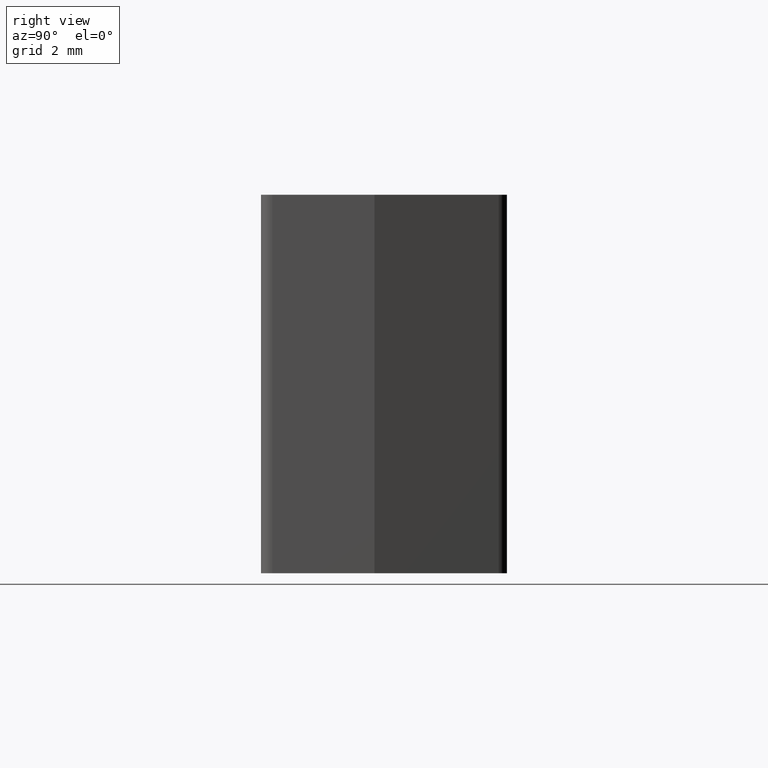
[diagram: clean part render]
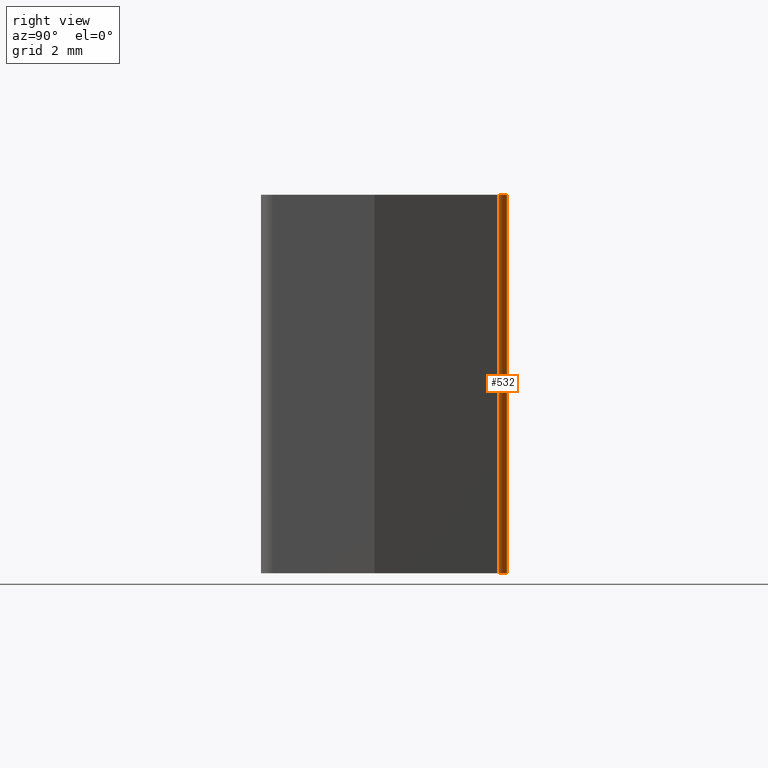
[diagram: same view with one face highlighted and labeled with its STEP entity id]
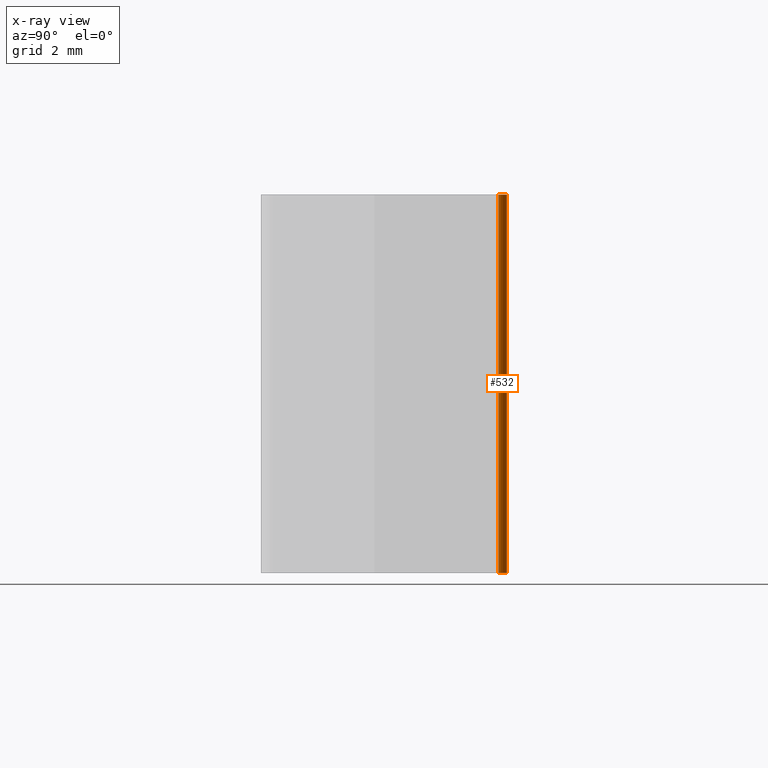
[diagram: x-ray of the same camera — body ghosted, the highlighted face saturated]
A machine part, right view. The second image highlights one B-rep face of the part: STEP entity #532.
The next image is the same camera in x-ray: the body ghosted, the highlighted face saturated — about 0% of this face is hidden behind the body in this view.
In plain terms, the highlighted cylindrical surface (edge-blend (fillet) strip) has radius 0.3 mm, axis along (0, 0, 1).
Its self-contained STEP definition (entity closure, byte-faithful):
#42=FACE_OUTER_BOUND('',#70,.T.);
#70=EDGE_LOOP('',(#411,#412,#413,#414));
#119=LINE('',#858,#181);
#120=LINE('',#859,#182);
#181=VECTOR('',#692,10.);
#182=VECTOR('',#693,10.);
#221=CIRCLE('',#584,0.3);
#227=CIRCLE('',#596,0.3);
#246=VERTEX_POINT('',#805);
#247=VERTEX_POINT('',#807);
#265=VERTEX_POINT('',#855);
#266=VERTEX_POINT('',#856);
#299=EDGE_CURVE('',#247,#246,#221,.T.);
#323=EDGE_CURVE('',#265,#266,#227,.T.);
#324=EDGE_CURVE('',#266,#247,#119,.T.);
#325=EDGE_CURVE('',#246,#265,#120,.T.);
#411=ORIENTED_EDGE('',*,*,#323,.T.);
#412=ORIENTED_EDGE('',*,*,#324,.T.);
#413=ORIENTED_EDGE('',*,*,#299,.T.);
#414=ORIENTED_EDGE('',*,*,#325,.T.);
#521=CYLINDRICAL_SURFACE('',#595,0.3);
#532=ADVANCED_FACE('',(#42),#521,.T.);
#584=AXIS2_PLACEMENT_3D('',#808,#648,#649);
#595=AXIS2_PLACEMENT_3D('',#854,#688,#689);
#596=AXIS2_PLACEMENT_3D('',#857,#690,#691);
#648=DIRECTION('center_axis',(0.,0.,1.));
#649=DIRECTION('ref_axis',(0.608761429008722,0.793353340291234,0.));
#688=DIRECTION('center_axis',(0.,0.,1.));
#689=DIRECTION('ref_axis',(0.608761429008722,0.793353340291234,0.));
#690=DIRECTION('center_axis',(0.,0.,-1.));
#691=DIRECTION('ref_axis',(0.608761429008722,0.793353340291234,0.));
#692=DIRECTION('',(0.,0.,-1.));
#693=DIRECTION('',(0.,0.,1.));
#805=CARTESIAN_POINT('',(14.0319797300974,6.5,0.));
#807=CARTESIAN_POINT('',(14.3217574779841,6.27764571353076,0.));
#808=CARTESIAN_POINT('Origin',(14.0319797300974,6.2,0.));
#854=CARTESIAN_POINT('Origin',(14.0319797300974,6.2,0.));
#855=CARTESIAN_POINT('',(14.0319797300974,6.5,10.));
#856=CARTESIAN_POINT('',(14.3217574779841,6.27764571353076,10.));
#857=CARTESIAN_POINT('Origin',(14.0319797300974,6.2,10.));
#858=CARTESIAN_POINT('',(14.3217574779841,6.27764571353076,0.));
#859=CARTESIAN_POINT('',(14.0319797300974,6.5,0.));